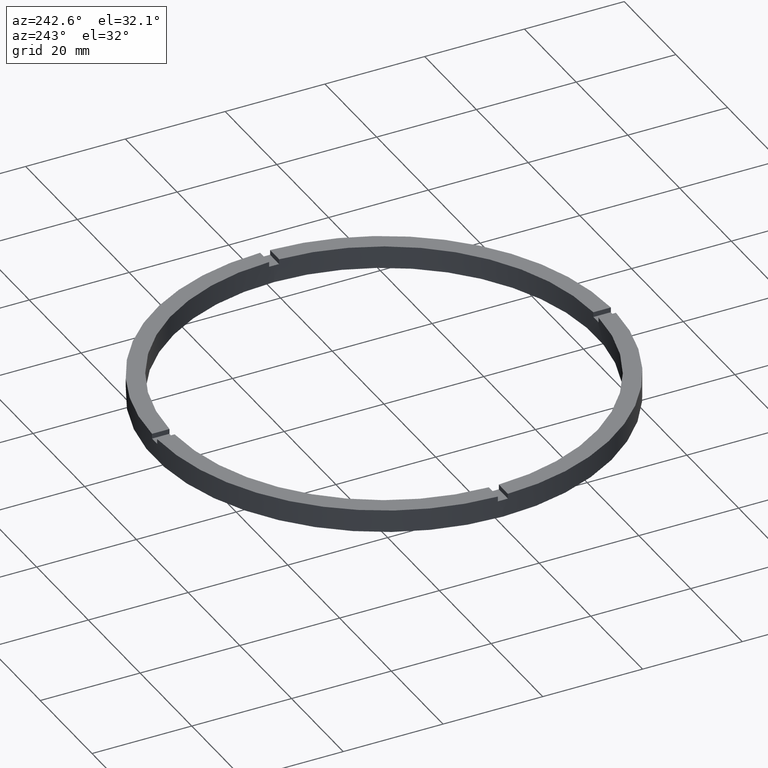
[diagram: clean part render]
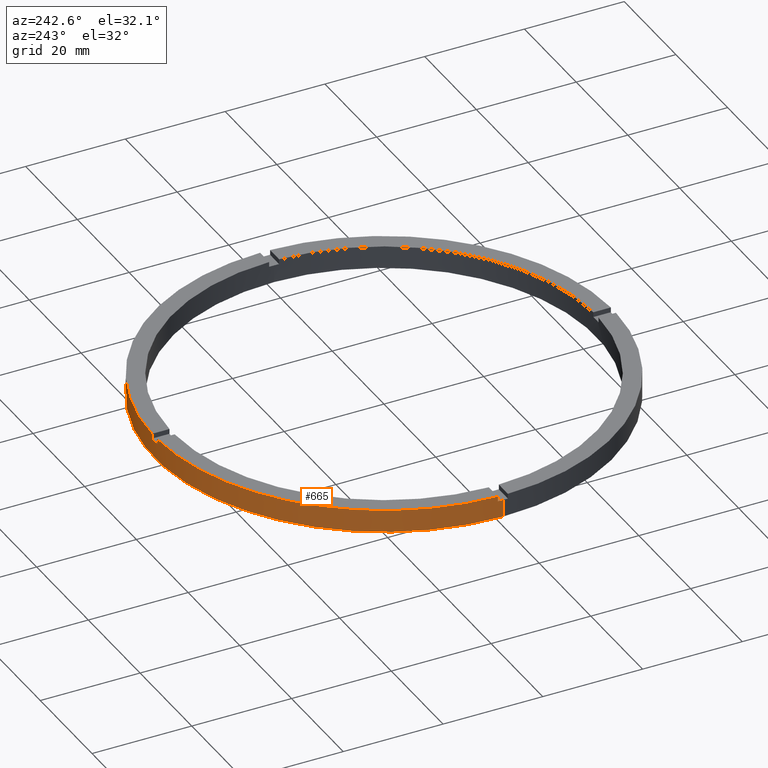
[diagram: same view with one face highlighted and labeled with its STEP entity id]
A machine part, auxiliary view. The second image highlights one B-rep face of the part: STEP entity #665.
In plain terms, the highlighted cylindrical surface (partial cylindrical patch) has radius 46 mm, axis along (-0, -0, -1).
Its self-contained STEP definition (entity closure, byte-faithful):
#3 = DIRECTION ( 'NONE',  ( 0.000000000000000000, -0.000000000000000000, 1.000000000000000000 ) ) ;
#7 = AXIS2_PLACEMENT_3D ( 'NONE', #286, #302, #50 ) ;
#11 = VERTEX_POINT ( 'NONE', #138 ) ;
#15 = DIRECTION ( 'NONE',  ( 1.000000000000000000, 0.000000000000000000, 0.000000000000000000 ) ) ;
#16 = AXIS2_PLACEMENT_3D ( 'NONE', #728, #144, #89 ) ;
#40 = CARTESIAN_POINT ( 'NONE',  ( -46.00000000000000000, 0.000000000000000000, 0.000000000000000000 ) ) ;
#50 = DIRECTION ( 'NONE',  ( 1.000000000000000000, 0.000000000000000000, 0.000000000000000000 ) ) ;
#53 = AXIS2_PLACEMENT_3D ( 'NONE', #312, #419, #394 ) ;
#54 = CARTESIAN_POINT ( 'NONE',  ( 0.9999999999999737987, 45.98912915026767223, 3.499999999999999556 ) ) ;
#67 = LINE ( 'NONE', #652, #74 ) ;
#74 = VECTOR ( 'NONE', #241, 1000.000000000000000 ) ;
#85 = CIRCLE ( 'NONE', #7, 46.00000000000000000 ) ;
#89 = DIRECTION ( 'NONE',  ( 1.000000000000000000, 0.000000000000000000, 0.000000000000000000 ) ) ;
#93 = EDGE_CURVE ( 'NONE', #550, #648, #427, .T. ) ;
#104 = DIRECTION ( 'NONE',  ( 1.000000000000000000, 0.000000000000000000, 0.000000000000000000 ) ) ;
#107 = EDGE_CURVE ( 'NONE', #550, #767, #698, .T. ) ;
#116 = CARTESIAN_POINT ( 'NONE',  ( -46.00000000000000000, 0.000000000000000000, 3.499999999999999556 ) ) ;
#118 = CARTESIAN_POINT ( 'NONE',  ( 45.98912915026767934, 0.9999999999998441247, 3.499999999999999556 ) ) ;
#122 = CARTESIAN_POINT ( 'NONE',  ( -45.98912915026767223, 0.9999999999999699130, 4.500000000000000000 ) ) ;
#127 = CARTESIAN_POINT ( 'NONE',  ( 0.9999999999999737987, 45.98912915026767223, 4.500000000000000000 ) ) ;
#135 = ORIENTED_EDGE ( 'NONE', *, *, #261, .F. ) ;
#138 = CARTESIAN_POINT ( 'NONE',  ( 0.9999999999999737987, 45.98912915026767223, 4.500000000000000000 ) ) ;
#144 = DIRECTION ( 'NONE',  ( 0.000000000000000000, 0.000000000000000000, 1.000000000000000000 ) ) ;
#158 = ORIENTED_EDGE ( 'NONE', *, *, #107, .F. ) ;
#186 = VERTEX_POINT ( 'NONE', #189 ) ;
#189 = CARTESIAN_POINT ( 'NONE',  ( -1.000000000000026201, 45.98912915026767223, 3.499999999999999556 ) ) ;
#194 = VERTEX_POINT ( 'NONE', #40 ) ;
#202 = VERTEX_POINT ( 'NONE', #54 ) ;
#210 = EDGE_CURVE ( 'NONE', #275, #468, #357, .T. ) ;
#219 = ORIENTED_EDGE ( 'NONE', *, *, #563, .T. ) ;
#224 = VERTEX_POINT ( 'NONE', #372 ) ;
#227 = ORIENTED_EDGE ( 'NONE', *, *, #686, .T. ) ;
#238 = VECTOR ( 'NONE', #555, 1000.000000000000000 ) ;
#239 = DIRECTION ( 'NONE',  ( -0.000000000000000000, -0.000000000000000000, -1.000000000000000000 ) ) ;
#241 = DIRECTION ( 'NONE',  ( -0.000000000000000000, -0.000000000000000000, -1.000000000000000000 ) ) ;
#246 = CYLINDRICAL_SURFACE ( 'NONE', #747, 46.00000000000000000 ) ;
#251 = DIRECTION ( 'NONE',  ( 1.000000000000000000, 0.000000000000000000, 0.000000000000000000 ) ) ;
#256 = CARTESIAN_POINT ( 'NONE',  ( -45.98912915026767223, 0.9999999999999699130, 3.499999999999999556 ) ) ;
#261 = EDGE_CURVE ( 'NONE', #202, #186, #586, .T. ) ;
#262 = AXIS2_PLACEMENT_3D ( 'NONE', #371, #3, #15 ) ;
#263 = FACE_OUTER_BOUND ( 'NONE', #435, .T. ) ;
#264 = EDGE_CURVE ( 'NONE', #468, #194, #67, .T. ) ;
#265 = CARTESIAN_POINT ( 'NONE',  ( 0.000000000000000000, 0.000000000000000000, 3.499999999999999556 ) ) ;
#275 = VERTEX_POINT ( 'NONE', #256 ) ;
#280 = EDGE_CURVE ( 'NONE', #488, #11, #616, .T. ) ;
#283 = CARTESIAN_POINT ( 'NONE',  ( 46.00000000000000000, 5.633375276077824704E-15, 4.500000000000000000 ) ) ;
#286 = CARTESIAN_POINT ( 'NONE',  ( 0.000000000000000000, 0.000000000000000000, 0.000000000000000000 ) ) ;
#302 = DIRECTION ( 'NONE',  ( 0.000000000000000000, 0.000000000000000000, 1.000000000000000000 ) ) ;
#307 = CARTESIAN_POINT ( 'NONE',  ( 0.000000000000000000, 0.000000000000000000, 4.500000000000000000 ) ) ;
#312 = CARTESIAN_POINT ( 'NONE',  ( 0.000000000000000000, 0.000000000000000000, 4.500000000000000000 ) ) ;
#347 = LINE ( 'NONE', #693, #608 ) ;
#351 = CARTESIAN_POINT ( 'NONE',  ( -45.98912915026767223, 0.9999999999999699130, 4.500000000000000000 ) ) ;
#353 = DIRECTION ( 'NONE',  ( 0.000000000000000000, 0.000000000000000000, 1.000000000000000000 ) ) ;
#357 = CIRCLE ( 'NONE', #579, 46.00000000000000000 ) ;
#363 = CARTESIAN_POINT ( 'NONE',  ( 0.000000000000000000, 0.000000000000000000, 3.499999999999999556 ) ) ;
#371 = CARTESIAN_POINT ( 'NONE',  ( 0.000000000000000000, 0.000000000000000000, 3.499999999999999556 ) ) ;
#372 = CARTESIAN_POINT ( 'NONE',  ( -1.000000000000026201, 45.98912915026767223, 4.500000000000000000 ) ) ;
#381 = VECTOR ( 'NONE', #353, 1000.000000000000000 ) ;
#382 = DIRECTION ( 'NONE',  ( -0.000000000000000000, -0.000000000000000000, -1.000000000000000000 ) ) ;
#394 = DIRECTION ( 'NONE',  ( 1.000000000000000000, 0.000000000000000000, 0.000000000000000000 ) ) ;
#416 = DIRECTION ( 'NONE',  ( -1.000000000000000000, 0.000000000000000000, 0.000000000000000000 ) ) ;
#419 = DIRECTION ( 'NONE',  ( 0.000000000000000000, 0.000000000000000000, 1.000000000000000000 ) ) ;
#427 = LINE ( 'NONE', #283, #447 ) ;
#435 = EDGE_LOOP ( 'NONE', ( #158, #520, #697, #729, #722, #499, #739, #227, #135, #713, #503, #219 ) ) ;
#447 = VECTOR ( 'NONE', #382, 1000.000000000000000 ) ;
#449 = CARTESIAN_POINT ( 'NONE',  ( 46.00000000000000000, 5.633375276077824704E-15, 0.000000000000000000 ) ) ;
#461 = DIRECTION ( 'NONE',  ( -0.000000000000000000, -0.000000000000000000, -1.000000000000000000 ) ) ;
#468 = VERTEX_POINT ( 'NONE', #116 ) ;
#488 = VERTEX_POINT ( 'NONE', #781 ) ;
#499 = ORIENTED_EDGE ( 'NONE', *, *, #597, .T. ) ;
#503 = ORIENTED_EDGE ( 'NONE', *, *, #280, .F. ) ;
#505 = CIRCLE ( 'NONE', #53, 46.00000000000000000 ) ;
#516 = VECTOR ( 'NONE', #461, 1000.000000000000000 ) ;
#520 = ORIENTED_EDGE ( 'NONE', *, *, #93, .T. ) ;
#524 = LINE ( 'NONE', #127, #238 ) ;
#540 = CARTESIAN_POINT ( 'NONE',  ( -1.000000000000026201, 45.98912915026767223, 4.500000000000000000 ) ) ;
#550 = VERTEX_POINT ( 'NONE', #761 ) ;
#554 = EDGE_CURVE ( 'NONE', #648, #194, #85, .T. ) ;
#555 = DIRECTION ( 'NONE',  ( 0.000000000000000000, 0.000000000000000000, 1.000000000000000000 ) ) ;
#559 = AXIS2_PLACEMENT_3D ( 'NONE', #265, #741, #104 ) ;
#563 = EDGE_CURVE ( 'NONE', #488, #767, #347, .T. ) ;
#579 = AXIS2_PLACEMENT_3D ( 'NONE', #363, #777, #251 ) ;
#586 = CIRCLE ( 'NONE', #262, 46.00000000000000000 ) ;
#597 = EDGE_CURVE ( 'NONE', #275, #704, #647, .T. ) ;
#608 = VECTOR ( 'NONE', #779, 1000.000000000000000 ) ;
#616 = CIRCLE ( 'NONE', #16, 46.00000000000000000 ) ;
#647 = LINE ( 'NONE', #122, #381 ) ;
#648 = VERTEX_POINT ( 'NONE', #449 ) ;
#652 = CARTESIAN_POINT ( 'NONE',  ( -46.00000000000000000, 0.000000000000000000, 4.500000000000000000 ) ) ;
#665 = ADVANCED_FACE ( 'NONE', ( #263 ), #246, .T. ) ;
#666 = EDGE_CURVE ( 'NONE', #202, #11, #524, .T. ) ;
#676 = EDGE_CURVE ( 'NONE', #224, #704, #505, .T. ) ;
#686 = EDGE_CURVE ( 'NONE', #224, #186, #782, .T. ) ;
#693 = CARTESIAN_POINT ( 'NONE',  ( 45.98912915026767934, 0.9999999999998441247, 4.500000000000000000 ) ) ;
#697 = ORIENTED_EDGE ( 'NONE', *, *, #554, .T. ) ;
#698 = CIRCLE ( 'NONE', #559, 46.00000000000000000 ) ;
#704 = VERTEX_POINT ( 'NONE', #351 ) ;
#713 = ORIENTED_EDGE ( 'NONE', *, *, #666, .T. ) ;
#722 = ORIENTED_EDGE ( 'NONE', *, *, #210, .F. ) ;
#728 = CARTESIAN_POINT ( 'NONE',  ( 0.000000000000000000, 0.000000000000000000, 4.500000000000000000 ) ) ;
#729 = ORIENTED_EDGE ( 'NONE', *, *, #264, .F. ) ;
#739 = ORIENTED_EDGE ( 'NONE', *, *, #676, .F. ) ;
#741 = DIRECTION ( 'NONE',  ( 0.000000000000000000, 0.000000000000000000, 1.000000000000000000 ) ) ;
#747 = AXIS2_PLACEMENT_3D ( 'NONE', #307, #239, #416 ) ;
#761 = CARTESIAN_POINT ( 'NONE',  ( 46.00000000000000000, 5.633375276077824704E-15, 3.499999999999999556 ) ) ;
#767 = VERTEX_POINT ( 'NONE', #118 ) ;
#777 = DIRECTION ( 'NONE',  ( 0.000000000000000000, 0.000000000000000000, 1.000000000000000000 ) ) ;
#779 = DIRECTION ( 'NONE',  ( -0.000000000000000000, -0.000000000000000000, -1.000000000000000000 ) ) ;
#781 = CARTESIAN_POINT ( 'NONE',  ( 45.98912915026767934, 0.9999999999998441247, 4.500000000000000000 ) ) ;
#782 = LINE ( 'NONE', #540, #516 ) ;